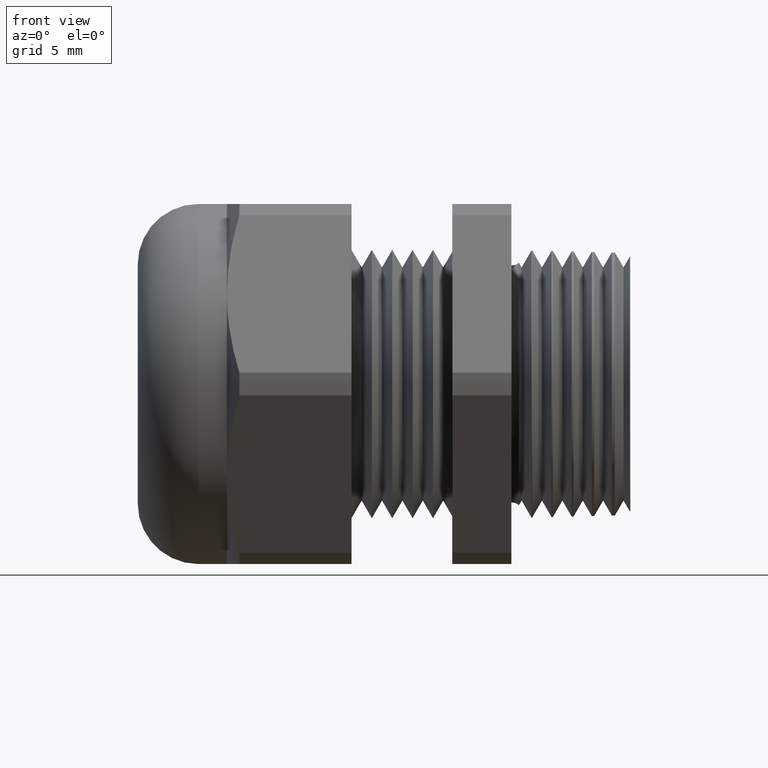
[diagram: clean part render]
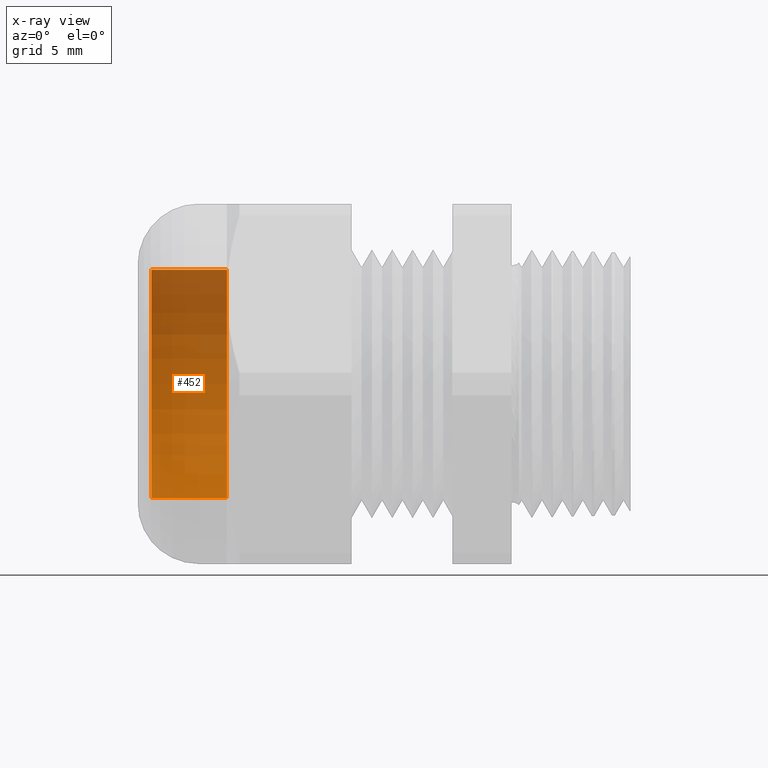
[diagram: x-ray — body ghosted, one internal face saturated and labeled with its STEP entity id]
A machine part, front view, then the same camera in x-ray: the body is ghosted and one INTERNAL B-rep face — a face not visible from any outside direction — is saturated and labeled: STEP entity #452.
In plain terms, the highlighted cylindrical surface (partial cylindrical patch) has radius 8.528 mm, axis along (-1, 0, 0).
Its self-contained STEP definition (entity closure, byte-faithful):
#451 = EDGE_LOOP ( 'NONE', ( #495, #583, #484, #486 ) ) ;
#452 = ADVANCED_FACE ( 'NONE', ( #1737 ), #1735, .T. ) ;
#484 = ORIENTED_EDGE ( 'NONE', *, *, #530, .F. ) ;
#485 = EDGE_CURVE ( 'NONE', #605, #531, #1799, .T. ) ;
#486 = ORIENTED_EDGE ( 'NONE', *, *, #485, .F. ) ;
#495 = ORIENTED_EDGE ( 'NONE', *, *, #497, .T. ) ;
#497 = EDGE_CURVE ( 'NONE', #605, #601, #1847, .T. ) ;
#530 = EDGE_CURVE ( 'NONE', #531, #536, #1912, .T. ) ;
#531 = VERTEX_POINT ( 'NONE', #1907 ) ;
#536 = VERTEX_POINT ( 'NONE', #1905 ) ;
#582 = EDGE_CURVE ( 'NONE', #601, #536, #2000, .T. ) ;
#583 = ORIENTED_EDGE ( 'NONE', *, *, #582, .T. ) ;
#601 = VERTEX_POINT ( 'NONE', #2020 ) ;
#605 = VERTEX_POINT ( 'NONE', #2069 ) ;
#1732 = DIRECTION ( 'NONE',  ( 0.0000000000000000000, 0.0000000000000000000, 1.000000000000000000 ) ) ;
#1733 = DIRECTION ( 'NONE',  ( -1.000000000000000000, 0.0000000000000000000, 0.0000000000000000000 ) ) ;
#1734 = AXIS2_PLACEMENT_3D ( 'NONE', #1736, #1733, #1732 ) ;
#1735 = CYLINDRICAL_SURFACE ( 'NONE', #1734, 0.3357499999999999400 ) ;
#1736 = CARTESIAN_POINT ( 'NONE',  ( -0.7238591030180623300, 0.0000000000000000000, 0.0000000000000000000 ) ) ;
#1737 = FACE_OUTER_BOUND ( 'NONE', #451, .T. ) ;
#1796 = DIRECTION ( 'NONE',  ( -1.000000000000000000, 0.0000000000000000000, 0.0000000000000000000 ) ) ;
#1797 = VECTOR ( 'NONE', #1796, 39.37007874015748100 ) ;
#1798 = CARTESIAN_POINT ( 'NONE',  ( -0.7238591030180623300, 0.0000000000000000000, 0.3357499999999999400 ) ) ;
#1799 = LINE ( 'NONE', #1798, #1797 ) ;
#1843 = DIRECTION ( 'NONE',  ( 0.0000000000000000000, 0.0000000000000000000, 1.000000000000000000 ) ) ;
#1844 = DIRECTION ( 'NONE',  ( -1.000000000000000000, 0.0000000000000000000, 0.0000000000000000000 ) ) ;
#1845 = CARTESIAN_POINT ( 'NONE',  ( -0.8375000000000000200, 0.0000000000000000000, 0.0000000000000000000 ) ) ;
#1846 = AXIS2_PLACEMENT_3D ( 'NONE', #1845, #1844, #1843 ) ;
#1847 = CIRCLE ( 'NONE', #1846, 0.3357499999999999400 ) ;
#1905 = CARTESIAN_POINT ( 'NONE',  ( -1.060000000000000300, 4.111751628137237600E-017, -0.3357499999999999400 ) ) ;
#1907 = CARTESIAN_POINT ( 'NONE',  ( -1.060000000000000300, 0.0000000000000000000, 0.3357499999999999400 ) ) ;
#1908 = DIRECTION ( 'NONE',  ( 0.0000000000000000000, 0.0000000000000000000, 1.000000000000000000 ) ) ;
#1909 = DIRECTION ( 'NONE',  ( -1.000000000000000000, 0.0000000000000000000, 0.0000000000000000000 ) ) ;
#1910 = CARTESIAN_POINT ( 'NONE',  ( -1.060000000000000300, 0.0000000000000000000, 0.0000000000000000000 ) ) ;
#1911 = AXIS2_PLACEMENT_3D ( 'NONE', #1910, #1909, #1908 ) ;
#1912 = CIRCLE ( 'NONE', #1911, 0.3357499999999999400 ) ;
#1997 = DIRECTION ( 'NONE',  ( -1.000000000000000000, 0.0000000000000000000, 0.0000000000000000000 ) ) ;
#1998 = VECTOR ( 'NONE', #1997, 39.37007874015748100 ) ;
#1999 = CARTESIAN_POINT ( 'NONE',  ( -0.7238591030180623300, 4.111751628137237600E-017, -0.3357499999999999400 ) ) ;
#2000 = LINE ( 'NONE', #1999, #1998 ) ;
#2020 = CARTESIAN_POINT ( 'NONE',  ( -0.8375000000000000200, 4.111751628137237600E-017, -0.3357499999999999400 ) ) ;
#2069 = CARTESIAN_POINT ( 'NONE',  ( -0.8375000000000000200, 0.0000000000000000000, 0.3357499999999999400 ) ) ;